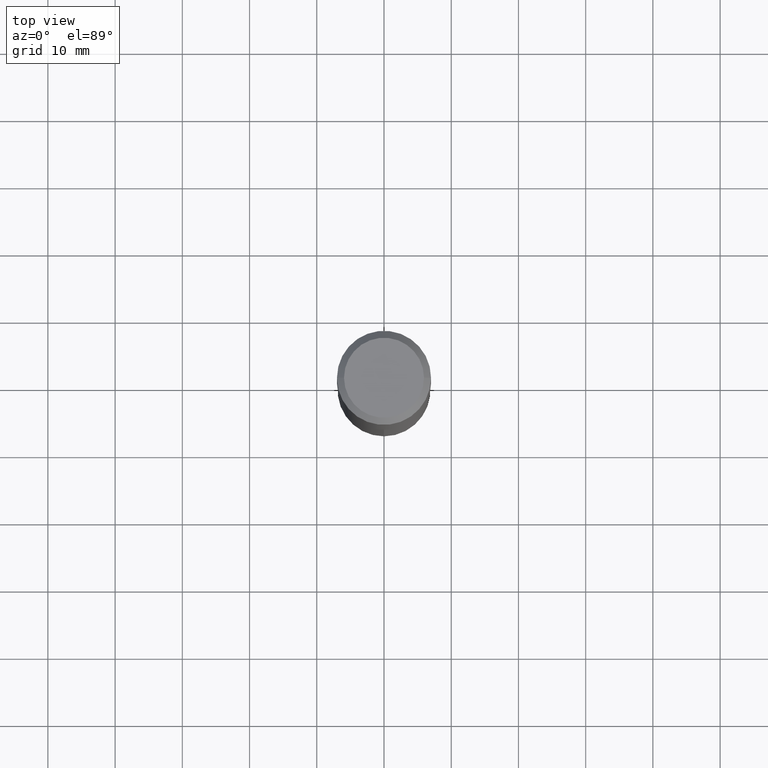
[diagram: clean part render]
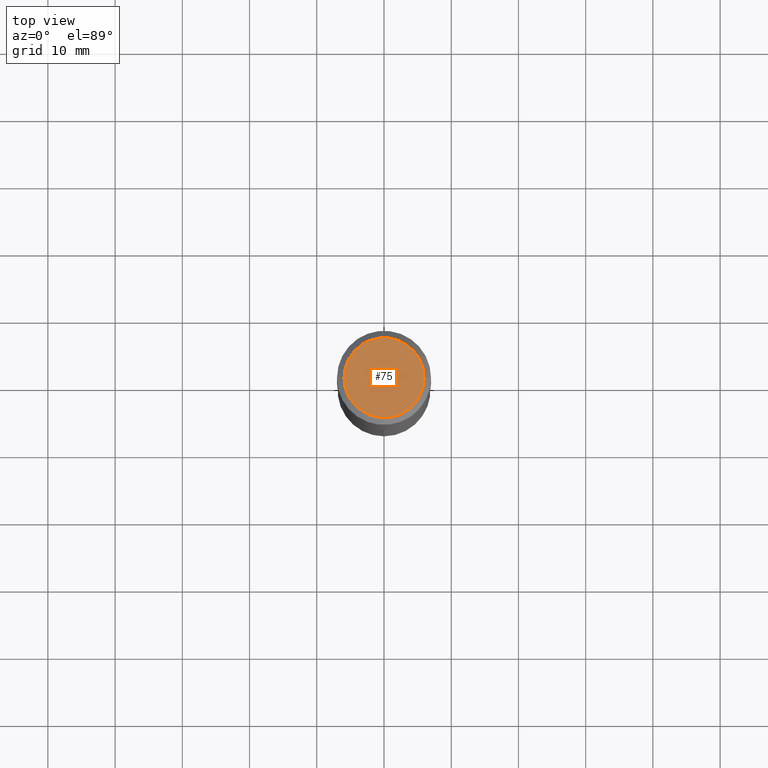
[diagram: same view with one face highlighted and labeled with its STEP entity id]
A machine part, top view. The second image highlights one B-rep face of the part: STEP entity #75.
In plain terms, the highlighted planar face has unit normal (0, -0, -1).
Its self-contained STEP definition (entity closure, byte-faithful):
#18 = DIRECTION ( 'NONE',  ( 2.438088387897960049E-29, -3.491481338843145188E-15, -1.000000000000000000 ) ) ;
#20 = CARTESIAN_POINT ( 'NONE',  ( -1.002970424325033577E-46, 1.431975951230896486E-32, 4.101342130344485961E-18 ) ) ;
#24 = CIRCLE ( 'NONE', #427, 0.2342600000000000238 ) ;
#26 = CARTESIAN_POINT ( 'NONE',  ( 0.2342600000000000238, -1.821115673845785155E-15, 4.101342130356573868E-18 ) ) ;
#40 = EDGE_LOOP ( 'NONE', ( #341, #116 ) ) ;
#48 = FACE_OUTER_BOUND ( 'NONE', #40, .T. ) ;
#75 = ADVANCED_FACE ( 'NONE', ( #48 ), #367, .F. ) ;
#97 = DIRECTION ( 'NONE',  ( 1.000000000000000000, -6.982962677686267499E-15, 4.876157962347795834E-29 ) ) ;
#107 = DIRECTION ( 'NONE',  ( -2.445468806185136597E-29, 3.491481338843145583E-15, 1.000000000000000000 ) ) ;
#116 = ORIENTED_EDGE ( 'NONE', *, *, #320, .T. ) ;
#121 = CIRCLE ( 'NONE', #149, 0.2342600000000000238 ) ;
#126 = EDGE_CURVE ( 'NONE', #304, #225, #121, .T. ) ;
#149 = AXIS2_PLACEMENT_3D ( 'NONE', #20, #430, #97 ) ;
#179 = CARTESIAN_POINT ( 'NONE',  ( -1.002970424325033577E-46, 1.431975951230896486E-32, 4.101342130344485961E-18 ) ) ;
#222 = AXIS2_PLACEMENT_3D ( 'NONE', #466, #18, #471 ) ;
#225 = VERTEX_POINT ( 'NONE', #26 ) ;
#304 = VERTEX_POINT ( 'NONE', #373 ) ;
#320 = EDGE_CURVE ( 'NONE', #225, #304, #24, .T. ) ;
#341 = ORIENTED_EDGE ( 'NONE', *, *, #126, .T. ) ;
#367 = PLANE ( 'NONE',  #222 ) ;
#373 = CARTESIAN_POINT ( 'NONE',  ( -0.2342600000000000238, 1.707997756148671759E-15, 4.101342130332794026E-18 ) ) ;
#427 = AXIS2_PLACEMENT_3D ( 'NONE', #179, #107, #441 ) ;
#430 = DIRECTION ( 'NONE',  ( -2.445468806185136597E-29, 3.491481338843145583E-15, 1.000000000000000000 ) ) ;
#441 = DIRECTION ( 'NONE',  ( 1.000000000000000000, -6.982962677686267499E-15, 4.876157962347795834E-29 ) ) ;
#466 = CARTESIAN_POINT ( 'NONE',  ( -5.014852121625167883E-47, 7.159879756154482429E-33, 2.050671065172242981E-18 ) ) ;
#471 = DIRECTION ( 'NONE',  ( -1.000000000000000000, 6.982962677686265922E-15, -4.876176775795935793E-29 ) ) ;